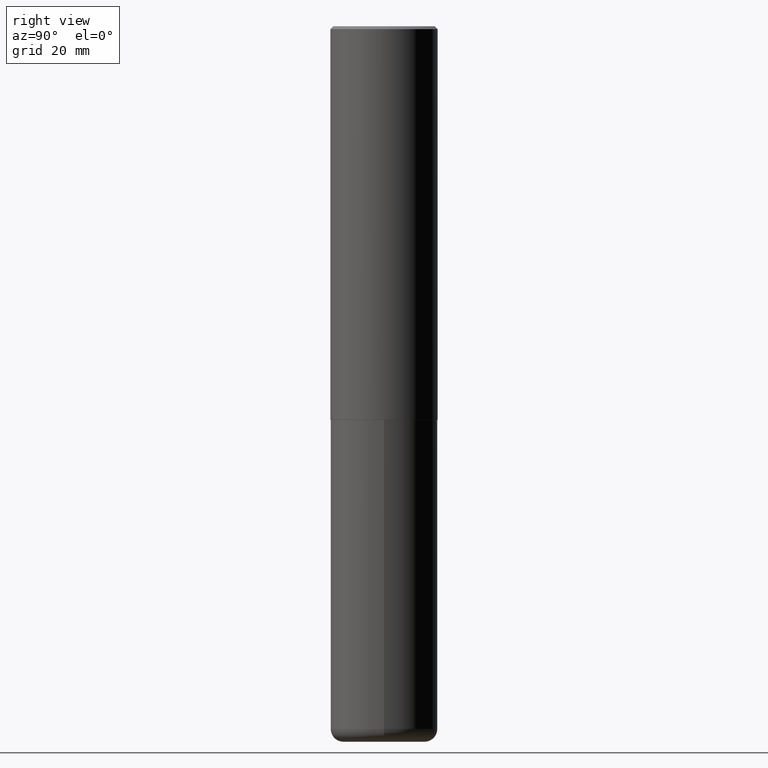
[diagram: clean part render]
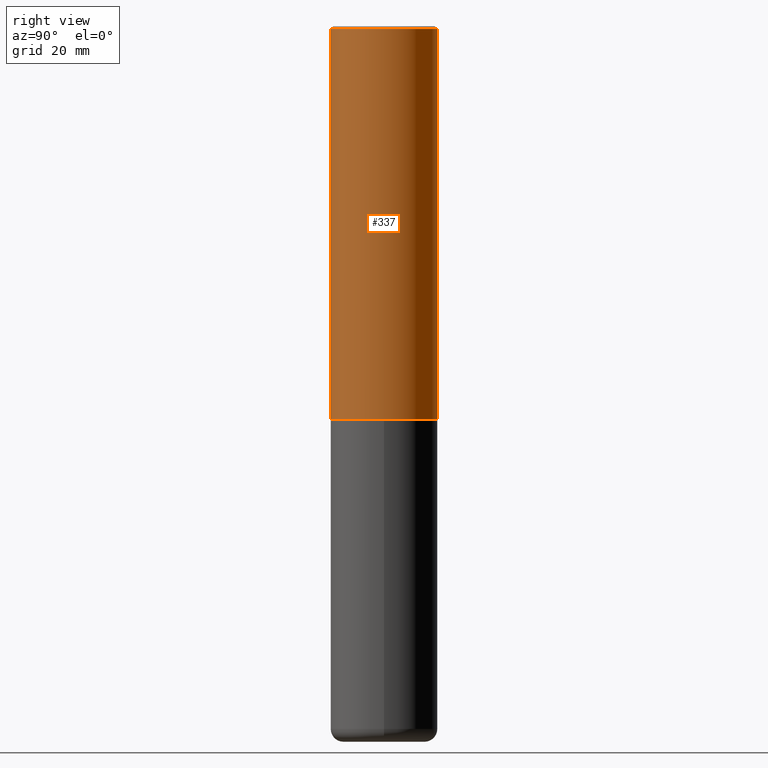
[diagram: same view with one face highlighted and labeled with its STEP entity id]
A machine part, right view. The second image highlights one B-rep face of the part: STEP entity #337.
In plain terms, the highlighted cylindrical surface (partial cylindrical patch) has radius 9.525 mm, axis along (-0, 0, 1).
Its self-contained STEP definition (entity closure, byte-faithful):
#3 = EDGE_CURVE ( 'NONE', #241, #293, #377, .T. ) ;
#17 = VECTOR ( 'NONE', #99, 39.37007874015748143 ) ;
#27 = CARTESIAN_POINT ( 'NONE',  ( -2.618611004132351594E-15, -0.3750000000000002220, 1.308998548422625521E-15 ) ) ;
#34 = CARTESIAN_POINT ( 'NONE',  ( 4.892080783483214581E-31, -6.981325591587361238E-17, -0.02000000000000008715 ) ) ;
#42 = ORIENTED_EDGE ( 'NONE', *, *, #184, .F. ) ;
#52 = VERTEX_POINT ( 'NONE', #280 ) ;
#60 = DIRECTION ( 'NONE',  ( -2.446040391741596606E-29, 3.490662795793665557E-15, 1.000000000000000000 ) ) ;
#99 = DIRECTION ( 'NONE',  ( -2.446040391741596606E-29, 3.490662795793665557E-15, 1.000000000000000000 ) ) ;
#103 = DIRECTION ( 'NONE',  ( -2.446040391741596606E-29, 3.490662795793665557E-15, 1.000000000000000000 ) ) ;
#114 = CARTESIAN_POINT ( 'NONE',  ( 6.724165036897648492E-29, -9.595832025636787455E-15, -2.749000000000000110 ) ) ;
#131 = CARTESIAN_POINT ( 'NONE',  ( -2.618611004132284935E-15, -0.3750000000000099920, -2.748999999999999222 ) ) ;
#146 = CARTESIAN_POINT ( 'NONE',  ( 2.664535259100411196E-15, 0.3749999999999907296, -2.749000000000000998 ) ) ;
#161 = AXIS2_PLACEMENT_3D ( 'NONE', #34, #103, #174 ) ;
#164 = CARTESIAN_POINT ( 'NONE',  ( 2.664535259100376880E-15, 0.3750000000000002220, -1.308998548422625521E-15 ) ) ;
#173 = ORIENTED_EDGE ( 'NONE', *, *, #415, .T. ) ;
#174 = DIRECTION ( 'NONE',  ( -6.982962677686265922E-15, -1.000000000000000000, 3.494488891895536035E-15 ) ) ;
#183 = AXIS2_PLACEMENT_3D ( 'NONE', #114, #216, #336 ) ;
#184 = EDGE_CURVE ( 'NONE', #293, #52, #340, .T. ) ;
#202 = CARTESIAN_POINT ( 'NONE',  ( -2.572686749164323547E-15, -0.3750000000000001110, -0.01999999999999877570 ) ) ;
#203 = EDGE_CURVE ( 'NONE', #348, #52, #417, .T. ) ;
#210 = EDGE_LOOP ( 'NONE', ( #173, #219, #42, #235 ) ) ;
#216 = DIRECTION ( 'NONE',  ( -2.446040391741596606E-29, 3.490662795793665557E-15, 1.000000000000000000 ) ) ;
#219 = ORIENTED_EDGE ( 'NONE', *, *, #203, .T. ) ;
#229 = FACE_OUTER_BOUND ( 'NONE', #210, .T. ) ;
#235 = ORIENTED_EDGE ( 'NONE', *, *, #3, .F. ) ;
#241 = VERTEX_POINT ( 'NONE', #131 ) ;
#262 = CYLINDRICAL_SURFACE ( 'NONE', #325, 0.3750000000000002220 ) ;
#280 = CARTESIAN_POINT ( 'NONE',  ( 2.618611004132350411E-15, 0.3749999999999999445, -0.02000000000000139513 ) ) ;
#292 = CARTESIAN_POINT ( 'NONE',  ( 0.000000000000000000, 0.000000000000000000, 0.000000000000000000 ) ) ;
#293 = VERTEX_POINT ( 'NONE', #202 ) ;
#298 = CIRCLE ( 'NONE', #183, 0.3750000000000003886 ) ;
#325 = AXIS2_PLACEMENT_3D ( 'NONE', #292, #390, #355 ) ;
#336 = DIRECTION ( 'NONE',  ( -6.982962677686265922E-15, -1.000000000000000000, 2.913971193241877611E-15 ) ) ;
#337 = ADVANCED_FACE ( 'NONE', ( #229 ), #262, .T. ) ;
#340 = CIRCLE ( 'NONE', #161, 0.3750000000000000555 ) ;
#348 = VERTEX_POINT ( 'NONE', #146 ) ;
#355 = DIRECTION ( 'NONE',  ( -6.982962677686266711E-15, -1.000000000000000000, 3.490662795793665951E-15 ) ) ;
#368 = VECTOR ( 'NONE', #60, 39.37007874015748143 ) ;
#377 = LINE ( 'NONE', #27, #368 ) ;
#390 = DIRECTION ( 'NONE',  ( -2.446040391741596606E-29, 3.490662795793665557E-15, 1.000000000000000000 ) ) ;
#415 = EDGE_CURVE ( 'NONE', #241, #348, #298, .T. ) ;
#417 = LINE ( 'NONE', #164, #17 ) ;